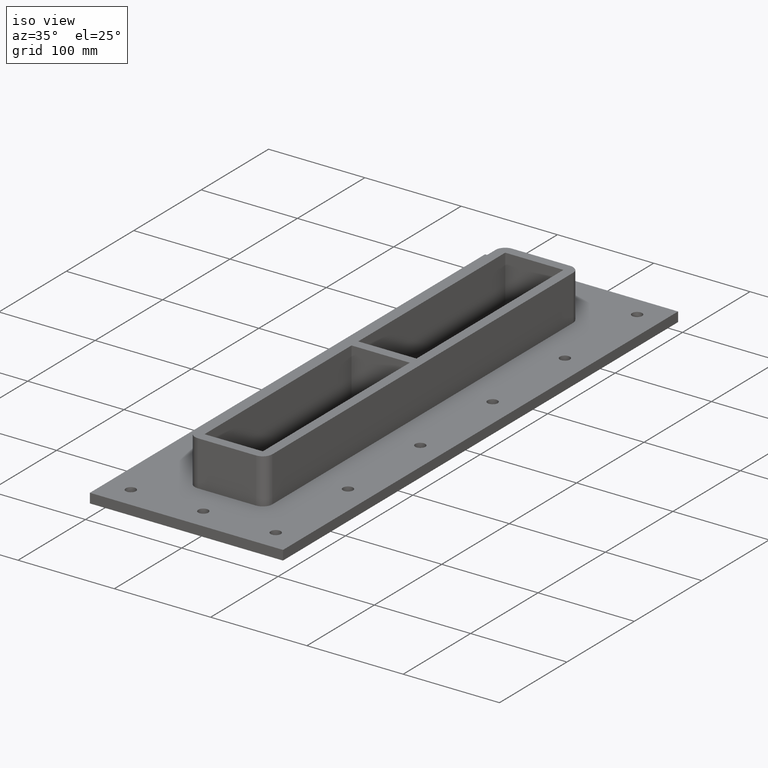
[diagram: clean part render]
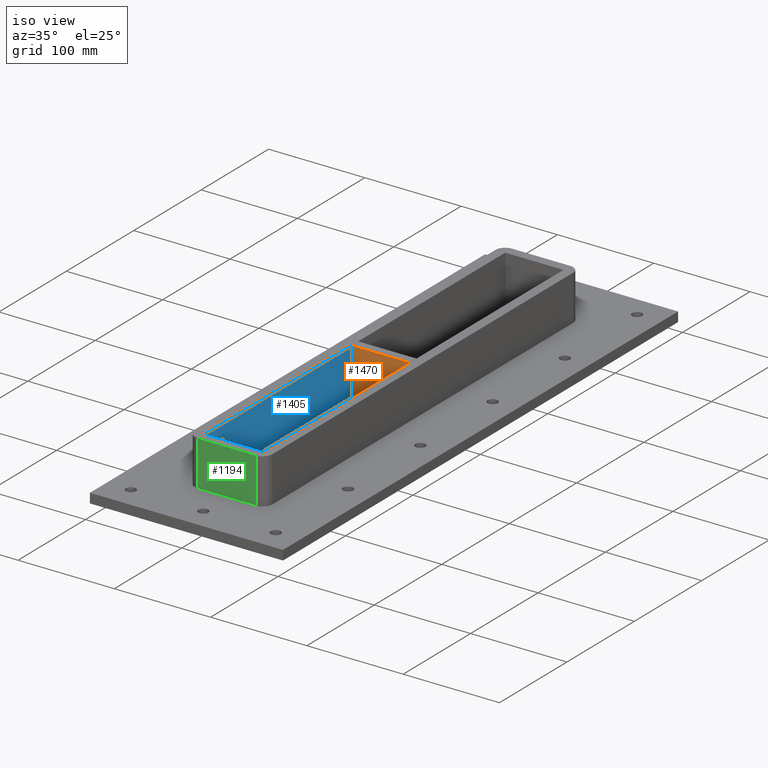
[diagram: same view with three faces highlighted in distinct colors, each labeled with its STEP entity id]
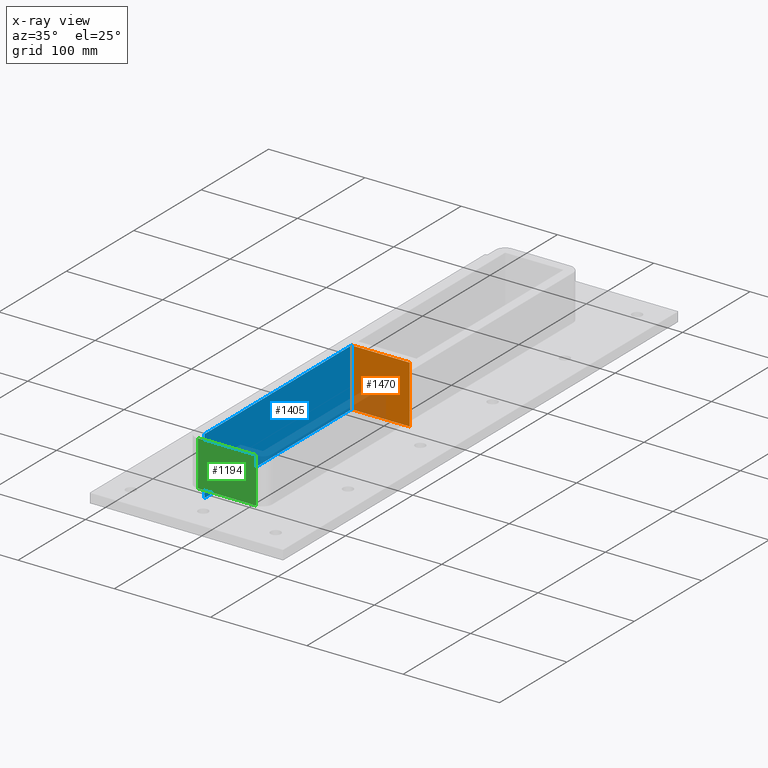
[diagram: x-ray of the same camera — body ghosted, the three highlighted faces saturated]
A machine part, iso view with three faces highlighted in distinct colors.
The next image is the same camera in x-ray (body ghosted, the three faces saturated) — at least one of them is partly hidden behind the body in this view.
Their STEP definitions:

[orange] entity #1470 — the highlighted planar face has unit normal (0, 1, 0).
#1138=CARTESIAN_POINT('',(30.250000000000021,-5.00000000000238,-30.0));
#1139=VERTEX_POINT('',#1138);
#1146=CARTESIAN_POINT('',(-30.250000000000018,-5.00000000000238,-30.0));
#1147=VERTEX_POINT('',#1146);
#1148=CARTESIAN_POINT('',(30.250000000000021,-5.00000000000238,-30.0));
#1149=DIRECTION('',(-1.0,0.0,0.0));
#1150=VECTOR('',#1149,60.500000000000036);
#1151=LINE('',#1148,#1150);
#1152=EDGE_CURVE('',#1139,#1147,#1151,.T.);
#1381=CARTESIAN_POINT('',(-30.250000000000018,-5.00000000000238,30.0));
#1382=VERTEX_POINT('',#1381);
#1383=CARTESIAN_POINT('',(-30.250000000000018,-5.00000000000238,30.0));
#1384=DIRECTION('',(0.0,0.0,-1.0));
#1385=VECTOR('',#1384,60.0);
#1386=LINE('',#1383,#1385);
#1387=EDGE_CURVE('',#1382,#1147,#1386,.T.);
#1437=CARTESIAN_POINT('',(30.250000000000021,-5.00000000000238,30.0));
#1438=VERTEX_POINT('',#1437);
#1445=CARTESIAN_POINT('',(30.250000000000021,-5.00000000000238,30.0));
#1446=DIRECTION('',(0.0,0.0,-1.0));
#1447=VECTOR('',#1446,60.0);
#1448=LINE('',#1445,#1447);
#1449=EDGE_CURVE('',#1438,#1139,#1448,.T.);
#1454=CARTESIAN_POINT('',(-30.250000000000021,-5.00000000000238,30.0));
#1455=DIRECTION('',(0.0,1.0,0.0));
#1456=DIRECTION('',(1.0,0.0,0.0));
#1457=AXIS2_PLACEMENT_3D('',#1454,#1455,#1456);
#1458=PLANE('',#1457);
#1459=ORIENTED_EDGE('',*,*,#1152,.F.);
#1460=ORIENTED_EDGE('',*,*,#1449,.F.);
#1461=CARTESIAN_POINT('',(-30.250000000000014,-5.00000000000238,30.0));
#1462=DIRECTION('',(1.0,0.0,0.0));
#1463=VECTOR('',#1462,60.500000000000036);
#1464=LINE('',#1461,#1463);
#1465=EDGE_CURVE('',#1382,#1438,#1464,.T.);
#1466=ORIENTED_EDGE('',*,*,#1465,.F.);
#1467=ORIENTED_EDGE('',*,*,#1387,.T.);
#1468=EDGE_LOOP('',(#1459,#1460,#1466,#1467));
#1469=FACE_OUTER_BOUND('',#1468,.T.);
#1470=ADVANCED_FACE('',(#1469),#1458,.F.);

[blue] entity #1405 — the highlighted planar face has unit normal (-1, 0, 0).
#1146=CARTESIAN_POINT('',(-30.250000000000018,-5.00000000000238,-30.0));
#1147=VERTEX_POINT('',#1146);
#1154=CARTESIAN_POINT('',(-30.249999999999947,-223.00000000000239,-30.0));
#1155=VERTEX_POINT('',#1154);
#1156=CARTESIAN_POINT('',(-30.250000000000018,-5.000000000002387,-30.0));
#1157=DIRECTION('',(0.0,-1.0,0.0));
#1158=VECTOR('',#1157,218.0);
#1159=LINE('',#1156,#1158);
#1160=EDGE_CURVE('',#1147,#1155,#1159,.T.);
#1375=CARTESIAN_POINT('',(-30.249999999999947,-223.00000000000239,30.0));
#1376=DIRECTION('',(-1.0,0.0,0.0));
#1377=DIRECTION('',(0.0,1.0,0.0));
#1378=AXIS2_PLACEMENT_3D('',#1375,#1376,#1377);
#1379=PLANE('',#1378);
#1380=ORIENTED_EDGE('',*,*,#1160,.F.);
#1381=CARTESIAN_POINT('',(-30.250000000000018,-5.00000000000238,30.0));
#1382=VERTEX_POINT('',#1381);
#1383=CARTESIAN_POINT('',(-30.250000000000018,-5.00000000000238,30.0));
#1384=DIRECTION('',(0.0,0.0,-1.0));
#1385=VECTOR('',#1384,60.0);
#1386=LINE('',#1383,#1385);
#1387=EDGE_CURVE('',#1382,#1147,#1386,.T.);
#1388=ORIENTED_EDGE('',*,*,#1387,.F.);
#1389=CARTESIAN_POINT('',(-30.249999999999947,-223.00000000000239,30.0));
#1390=VERTEX_POINT('',#1389);
#1391=CARTESIAN_POINT('',(-30.249999999999947,-223.00000000000239,30.0));
#1392=DIRECTION('',(0.0,1.0,0.0));
#1393=VECTOR('',#1392,218.0);
#1394=LINE('',#1391,#1393);
#1395=EDGE_CURVE('',#1390,#1382,#1394,.T.);
#1396=ORIENTED_EDGE('',*,*,#1395,.F.);
#1397=CARTESIAN_POINT('',(-30.249999999999947,-223.00000000000239,30.0));
#1398=DIRECTION('',(0.0,0.0,-1.0));
#1399=VECTOR('',#1398,60.0);
#1400=LINE('',#1397,#1399);
#1401=EDGE_CURVE('',#1390,#1155,#1400,.T.);
#1402=ORIENTED_EDGE('',*,*,#1401,.T.);
#1403=EDGE_LOOP('',(#1380,#1388,#1396,#1402));
#1404=FACE_OUTER_BOUND('',#1403,.T.);
#1405=ADVANCED_FACE('',(#1404),#1379,.F.);

[green] entity #1194 — the highlighted planar face has unit normal (0, -1, 0).
#656=CARTESIAN_POINT('',(30.250000000000043,-232.99999999999997,-17.0));
#657=VERTEX_POINT('',#656);
#665=CARTESIAN_POINT('',(-30.249999999999972,-233.00000000000006,-17.0));
#666=VERTEX_POINT('',#665);
#667=CARTESIAN_POINT('',(-30.249999999999972,-232.99999999999983,-17.0));
#668=DIRECTION('',(1.0,0.0,0.0));
#669=VECTOR('',#668,60.500000000000014);
#670=LINE('',#667,#669);
#671=EDGE_CURVE('',#666,#657,#670,.T.);
#878=CARTESIAN_POINT('',(30.250000000000021,-232.99999999999983,30.0));
#879=VERTEX_POINT('',#878);
#887=CARTESIAN_POINT('',(30.250000000000021,-232.99999999999983,30.0));
#888=DIRECTION('',(0.0,0.0,-1.0));
#889=VECTOR('',#888,47.0);
#890=LINE('',#887,#889);
#891=EDGE_CURVE('',#879,#657,#890,.T.);
#1171=CARTESIAN_POINT('',(-40.249999999999943,-232.99999999999983,0.0));
#1172=DIRECTION('',(0.0,-1.0,0.0));
#1173=DIRECTION('',(1.0,0.0,0.0));
#1174=AXIS2_PLACEMENT_3D('',#1171,#1172,#1173);
#1175=PLANE('',#1174);
#1176=ORIENTED_EDGE('',*,*,#671,.T.);
#1177=ORIENTED_EDGE('',*,*,#891,.F.);
#1178=CARTESIAN_POINT('',(-30.249999999999947,-232.99999999999983,30.0));
#1179=VERTEX_POINT('',#1178);
#1180=CARTESIAN_POINT('',(-30.249999999999947,-232.99999999999983,30.0));
#1181=DIRECTION('',(1.0,0.0,0.0));
#1182=VECTOR('',#1181,60.499999999999957);
#1183=LINE('',#1180,#1182);
#1184=EDGE_CURVE('',#1179,#879,#1183,.T.);
#1185=ORIENTED_EDGE('',*,*,#1184,.F.);
#1186=CARTESIAN_POINT('',(-30.249999999999947,-232.99999999999983,-17.0));
#1187=DIRECTION('',(0.0,0.0,1.0));
#1188=VECTOR('',#1187,47.0);
#1189=LINE('',#1186,#1188);
#1190=EDGE_CURVE('',#666,#1179,#1189,.T.);
#1191=ORIENTED_EDGE('',*,*,#1190,.F.);
#1192=EDGE_LOOP('',(#1176,#1177,#1185,#1191));
#1193=FACE_OUTER_BOUND('',#1192,.T.);
#1194=ADVANCED_FACE('',(#1193),#1175,.T.);